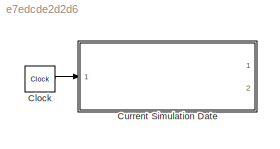
MODEL slx_e7edcde2d2d6
KIND library
BLOCK [Clock] Clock
  Decimation = 1/ConfParam.confOrbit.dt
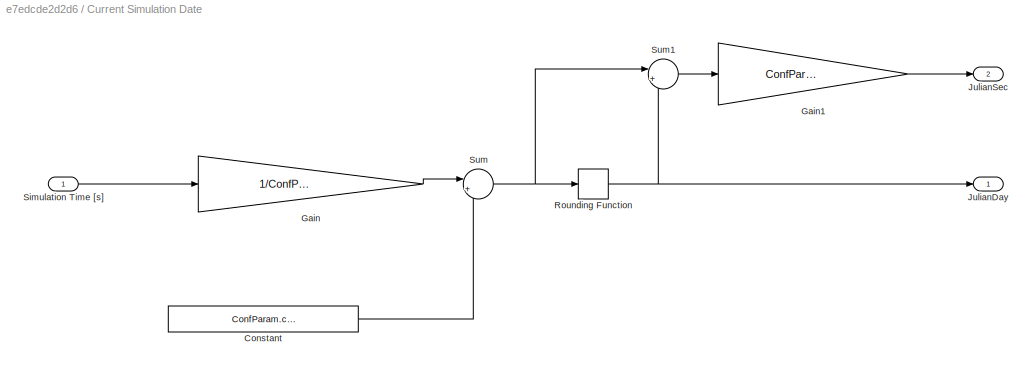
BLOCK [SubSystem] Current Simulation Date
  Ports = [1, 2]
  RequestExecContextInheritance = off
BLOCK [Constant] Current Simulation Date/Constant
  Value = ConfParam.confDate.InitialJD
BLOCK [Gain] Current Simulation Date/Gain
  Gain = 1/ConfParam.confConst.SolarDay
  OutDataTypeStr = Inherit: Inherit via internal rule
  ParamDataTypeStr = Inherit: Inherit via internal rule
  SaturateOnIntegerOverflow = off
BLOCK [Gain] Current Simulation Date/Gain1
  Gain = ConfParam.confConst.SolarDay
  OutDataTypeStr = Inherit: Inherit via internal rule
  ParamDataTypeStr = Inherit: Inherit via internal rule
  SaturateOnIntegerOverflow = off
BLOCK [Outport] Current Simulation Date/JulianDay
  IconDisplay = Port number
BLOCK [Outport] Current Simulation Date/JulianSec
  IconDisplay = Port number
  Port = 2
BLOCK [Rounding] Current Simulation Date/Rounding Function
BLOCK [Inport] Current Simulation Date/Simulation Time [s]
  IconDisplay = Port number
BLOCK [Sum] Current Simulation Date/Sum
  IconShape = round
  InputSameDT = off
  Inputs = |++
  OutDataTypeStr = Inherit: Inherit via internal rule
  Ports = [2, 1]
  SaturateOnIntegerOverflow = off
BLOCK [Sum] Current Simulation Date/Sum1
  IconShape = round
  InputSameDT = off
  Inputs = |+-
  OutDataTypeStr = Inherit: Inherit via internal rule
  Ports = [2, 1]
  SaturateOnIntegerOverflow = off
LINE Clock:1 -> Current Simulation Date:1
LINE Current Simulation Date/Constant:1 -> Current Simulation Date/Sum:2
LINE Current Simulation Date/Gain1:1 -> Current Simulation Date/JulianSec:1
LINE Current Simulation Date/Gain:1 -> Current Simulation Date/Sum:1
NET Current Simulation Date/Rounding Function:1 -> Current Simulation Date/JulianDay:1, Current Simulation Date/Sum1:2
LINE Current Simulation Date/Simulation Time [s]:1 -> Current Simulation Date/Gain:1
LINE Current Simulation Date/Sum1:1 -> Current Simulation Date/Gain1:1
NET Current Simulation Date/Sum:1 -> Current Simulation Date/Rounding Function:1, Current Simulation Date/Sum1:1
note: NET lines group one-source signal fan-out (src -> all destinations, sorted); 1:1 wires keep LINE
